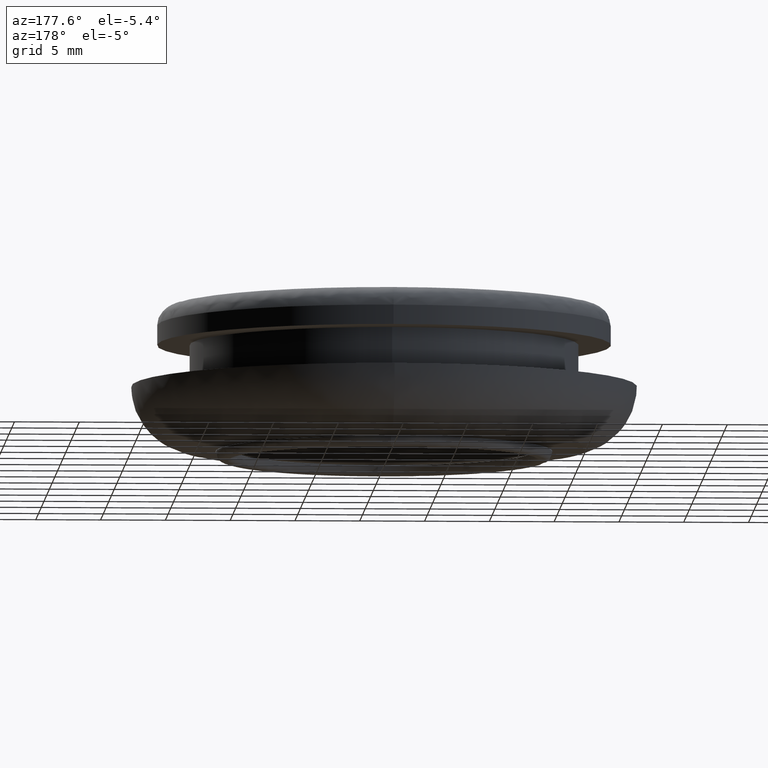
[diagram: clean part render]
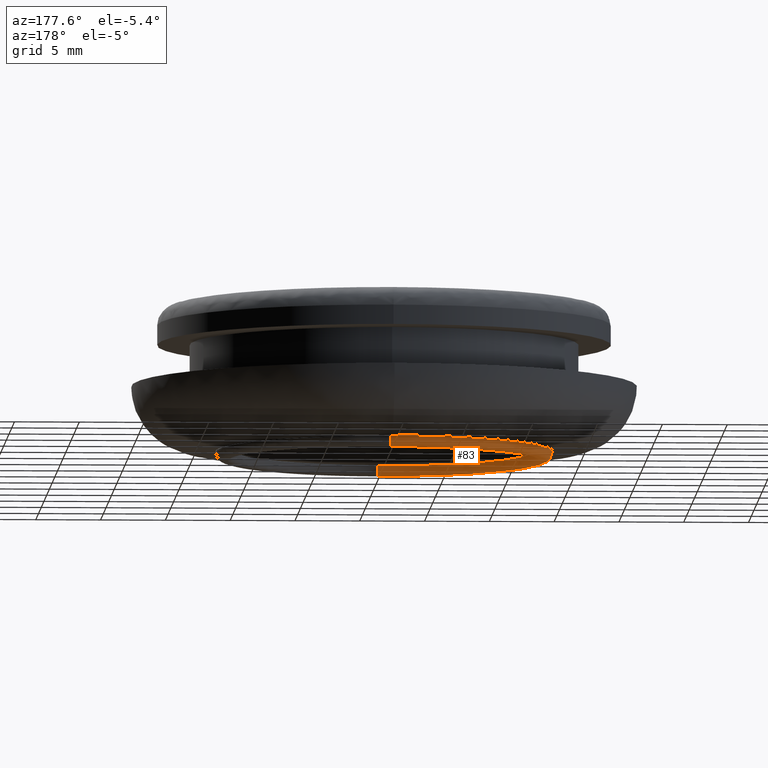
[diagram: same view with one face highlighted and labeled with its STEP entity id]
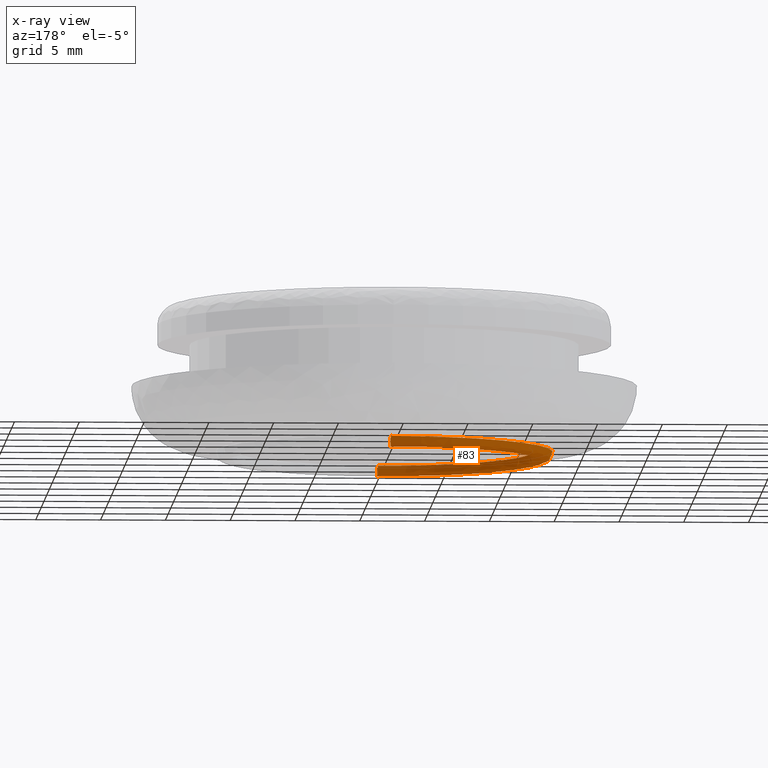
[diagram: x-ray of the same camera — body ghosted, the highlighted face saturated]
A machine part, auxiliary view. The second image highlights one B-rep face of the part: STEP entity #83.
The next image is the same camera in x-ray: the body ghosted, the highlighted face saturated — about 0% of this face is hidden behind the body in this view.
In plain terms, the highlighted face is a freeform B-spline surface patch.
Its self-contained STEP definition (entity closure, byte-faithful):
#83=ADVANCED_FACE('',(#182),#181,.T.);
#181=( BOUNDED_SURFACE() B_SPLINE_SURFACE( 2,2,((#365,#366,#367,#368,#369),(#370,#371,#372,#373,#374),(#375,#376,#377,#378,#379),(#380,#381,#382,#383,#384),(#385,#386,#387,#388,#389)), .UNSPECIFIED.,.F.,.F.,.F.) B_SPLINE_SURFACE_WITH_KNOTS((3,2,3),(3,2,3),(0.00000000000E+000,5.00000000000E-001,1.00000000000E+000),(0.00000000000E+000,5.00000000000E-001,1.00000000000E+000), .UNSPECIFIED. ) GEOMETRIC_REPRESENTATION_ITEM() RATIONAL_B_SPLINE_SURFACE(((1.00000000000E+000,7.07106781187E-001,1.00000000000E+000,7.07106781187E-001,1.00000000000E+000),(7.07106781187E-001,5.00000000000E-001,7.07106781187E-001,5.00000000000E-001,7.07106781187E-001),(1.00000000000E+000,7.07106781187E-001,1.00000000000E+000,7.07106781187E-001,1.00000000000E+000),(7.07106781187E-001,5.00000000000E-001,7.07106781187E-001,5.00000000000E-001,7.07106781187E-001),(1.00000000000E+000,7.07106781187E-001,1.00000000000E+000,7.07106781187E-001,1.00000000000E+000))) REPRESENTATION_ITEM('') SURFACE() );
#182=FACE_OUTER_BOUND('',#390,.T.);
#365=CARTESIAN_POINT('',(-1.40829730690E-015,1.12500000000E+001,1.15000000000E+001));
#366=CARTESIAN_POINT('',(-1.40829730690E-015,1.20000000000E+001,1.15000000000E+001));
#367=CARTESIAN_POINT('',(-1.50014278343E-015,1.20000000000E+001,1.22500000000E+001));
#368=CARTESIAN_POINT('',(-1.59198825997E-015,1.20000000000E+001,1.30000000000E+001));
#369=CARTESIAN_POINT('',(-1.59198825997E-015,1.12500000000E+001,1.30000000000E+001));
#370=CARTESIAN_POINT('',(-1.15000000000E+001,1.12500000000E+001,1.15000000000E+001));
#371=CARTESIAN_POINT('',(-1.15000000000E+001,1.20000000000E+001,1.15000000000E+001));
#372=CARTESIAN_POINT('',(-1.22500000000E+001,1.20000000000E+001,1.22500000000E+001));
#373=CARTESIAN_POINT('',(-1.30000000000E+001,1.20000000000E+001,1.30000000000E+001));
#374=CARTESIAN_POINT('',(-1.30000000000E+001,1.12500000000E+001,1.30000000000E+001));
#375=CARTESIAN_POINT('',(-1.15000000000E+001,1.12500000000E+001,-7.04125397386E-016));
#376=CARTESIAN_POINT('',(-1.15000000000E+001,1.20000000000E+001,-7.04125397386E-016));
#377=CARTESIAN_POINT('',(-1.22500000000E+001,1.20000000000E+001,-7.50046618955E-016));
#378=CARTESIAN_POINT('',(-1.30000000000E+001,1.20000000000E+001,-7.95967840523E-016));
#379=CARTESIAN_POINT('',(-1.30000000000E+001,1.12500000000E+001,-7.95967840523E-016));
#380=CARTESIAN_POINT('',(-1.15000000000E+001,1.12500000000E+001,-1.15000000000E+001));
#381=CARTESIAN_POINT('',(-1.15000000000E+001,1.20000000000E+001,-1.15000000000E+001));
#382=CARTESIAN_POINT('',(-1.22500000000E+001,1.20000000000E+001,-1.22500000000E+001));
#383=CARTESIAN_POINT('',(-1.30000000000E+001,1.20000000000E+001,-1.30000000000E+001));
#384=CARTESIAN_POINT('',(-1.30000000000E+001,1.12500000000E+001,-1.30000000000E+001));
#385=CARTESIAN_POINT('',(-4.65121237223E-020,1.12500000000E+001,-1.15000000000E+001));
#386=CARTESIAN_POINT('',(-4.65121237223E-020,1.20000000000E+001,-1.15000000000E+001));
#387=CARTESIAN_POINT('',(-4.95455230956E-020,1.20000000000E+001,-1.22500000000E+001));
#388=CARTESIAN_POINT('',(-5.25789224689E-020,1.20000000000E+001,-1.30000000000E+001));
#389=CARTESIAN_POINT('',(-5.25789224687E-020,1.12500000000E+001,-1.30000000000E+001));
#390=EDGE_LOOP('',(#589,#590,#591,#592));
#589=ORIENTED_EDGE('',*,*,#669,.F.);
#590=ORIENTED_EDGE('',*,*,#670,.F.);
#591=ORIENTED_EDGE('',*,*,#668,.T.);
#592=ORIENTED_EDGE('',*,*,#671,.T.);
#668=EDGE_CURVE('',#827,#834,#847,.T.);
#669=EDGE_CURVE('',#853,#854,#855,.T.);
#670=EDGE_CURVE('',#827,#853,#861,.T.);
#671=EDGE_CURVE('',#834,#854,#867,.T.);
#827=VERTEX_POINT('',#1069);
#834=VERTEX_POINT('',#1072);
#847=CIRCLE('',#1082,1.15000000000E+001);
#853=VERTEX_POINT('',#1083);
#854=VERTEX_POINT('',#1084);
#855=CIRCLE('',#1088,1.30000000000E+001);
#861=(BOUNDED_CURVE() B_SPLINE_CURVE(2,(#1089,#1090,#1091,#1092,#1093),.UNSPECIFIED.,.F.,.F.) B_SPLINE_CURVE_WITH_KNOTS((3,2,3),(0.00000000000E+000,5.00000000000E-001,1.00000000000E+000),.UNSPECIFIED.) CURVE() GEOMETRIC_REPRESENTATION_ITEM() RATIONAL_B_SPLINE_CURVE((1.00000000000E+000,7.07106781187E-001,1.00000000000E+000,7.07106781187E-001,1.00000000000E+000)) REPRESENTATION_ITEM('') );
#867=(BOUNDED_CURVE() B_SPLINE_CURVE(2,(#1094,#1095,#1096,#1097,#1098),.UNSPECIFIED.,.F.,.F.) B_SPLINE_CURVE_WITH_KNOTS((3,2,3),(0.00000000000E+000,5.00000000000E-001,1.00000000000E+000),.UNSPECIFIED.) CURVE() GEOMETRIC_REPRESENTATION_ITEM() RATIONAL_B_SPLINE_CURVE((7.50000000000E-001,5.30330085890E-001,7.50000000000E-001,5.30330085890E-001,7.50000000000E-001)) REPRESENTATION_ITEM('') );
#1069=CARTESIAN_POINT('',(1.40829730690E-015,1.12500000000E+001,1.15000000000E+001));
#1072=CARTESIAN_POINT('',(0.00000000000E+000,1.12500000000E+001,-1.15000000000E+001));
#1079=CARTESIAN_POINT('',(0.00000000000E+000,1.12500000000E+001,0.00000000000E+000));
#1080=DIRECTION('',(0.00000000000E+000,-1.00000000000E+000,0.00000000000E+000));
#1081=DIRECTION('',(-0.00000000000E+000,-0.00000000000E+000,1.00000000000E+000));
#1082=AXIS2_PLACEMENT_3D('',#1079,#1080,#1081);
#1083=CARTESIAN_POINT('',(5.92118946467E-016,1.12500000000E+001,1.30000000000E+001));
#1084=CARTESIAN_POINT('',(0.00000000000E+000,1.12500000000E+001,-1.30000000000E+001));
#1085=CARTESIAN_POINT('',(0.00000000000E+000,1.12500000000E+001,0.00000000000E+000));
#1086=DIRECTION('',(0.00000000000E+000,-1.00000000000E+000,-0.00000000000E+000));
#1087=DIRECTION('',(-1.22460635382E-016,0.00000000000E+000,-1.00000000000E+000));
#1088=AXIS2_PLACEMENT_3D('',#1085,#1086,#1087);
#1089=CARTESIAN_POINT('',(-1.40829730690E-015,1.12500000000E+001,1.15000000000E+001));
#1090=CARTESIAN_POINT('',(-1.40829730690E-015,1.20000000000E+001,1.15000000000E+001));
#1091=CARTESIAN_POINT('',(-1.50014278343E-015,1.20000000000E+001,1.22500000000E+001));
#1092=CARTESIAN_POINT('',(-1.59198825997E-015,1.20000000000E+001,1.30000000000E+001));
#1093=CARTESIAN_POINT('',(-1.59198825997E-015,1.12500000000E+001,1.30000000000E+001));
#1094=CARTESIAN_POINT('',(1.18423789293E-015,1.12500000000E+001,-1.15000000000E+001));
#1095=CARTESIAN_POINT('',(2.51214793389E-015,1.20000000000E+001,-1.15000000000E+001));
#1096=CARTESIAN_POINT('',(1.77635683940E-015,1.20000000000E+001,-1.22500000000E+001));
#1097=CARTESIAN_POINT('',(2.09345661158E-015,1.20000000000E+001,-1.30000000000E+001));
#1098=CARTESIAN_POINT('',(1.77635683940E-015,1.12500000000E+001,-1.30000000000E+001));